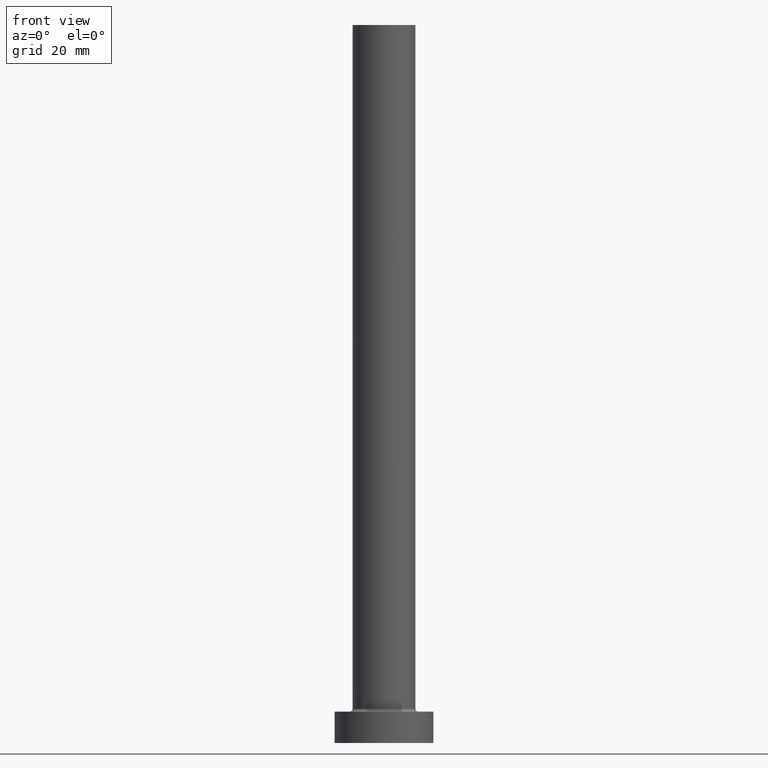
[diagram: clean part render]
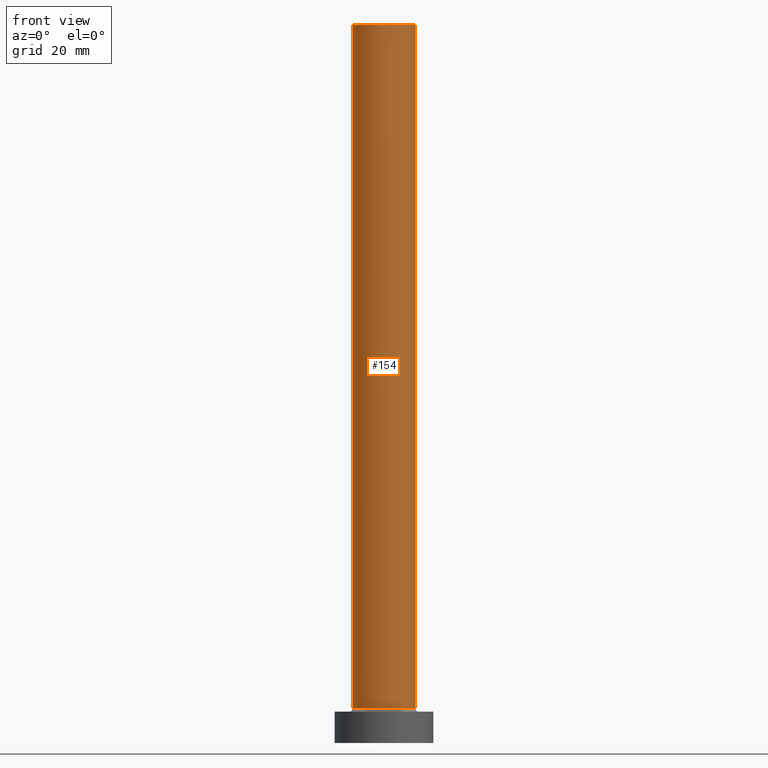
[diagram: same view with one face highlighted and labeled with its STEP entity id]
A machine part, front view. The second image highlights one B-rep face of the part: STEP entity #154.
In plain terms, the highlighted cylindrical surface (edge-blend (fillet) strip) has radius 7 mm, axis along (-0, -0, -1).
Its self-contained STEP definition (entity closure, byte-faithful):
#15 = VERTEX_POINT ( 'NONE', #131 ) ;
#35 = VERTEX_POINT ( 'NONE', #318 ) ;
#93 = FACE_OUTER_BOUND ( 'NONE', #261, .T. ) ;
#121 = CIRCLE ( 'NONE', #368, 7.000000000000000888 ) ;
#125 = LINE ( 'NONE', #276, #419 ) ;
#131 = CARTESIAN_POINT ( 'NONE',  ( -7.000000000000000888, 0.000000000000000000, 160.0000000000000000 ) ) ;
#135 = CARTESIAN_POINT ( 'NONE',  ( 7.000000000000000888, 8.572527594031474176E-16, 7.700000000000012612 ) ) ;
#139 = LINE ( 'NONE', #403, #333 ) ;
#154 = ADVANCED_FACE ( 'NONE', ( #93 ), #235, .T. ) ;
#159 = DIRECTION ( 'NONE',  ( 1.000000000000000000, 0.000000000000000000, 0.000000000000000000 ) ) ;
#160 = CARTESIAN_POINT ( 'NONE',  ( 0.000000000000000000, 0.000000000000000000, 160.0000000000000000 ) ) ;
#171 = AXIS2_PLACEMENT_3D ( 'NONE', #434, #188, #369 ) ;
#188 = DIRECTION ( 'NONE',  ( 0.000000000000000000, 0.000000000000000000, 1.000000000000000000 ) ) ;
#191 = DIRECTION ( 'NONE',  ( -1.000000000000000000, 0.000000000000000000, 0.000000000000000000 ) ) ;
#211 = VERTEX_POINT ( 'NONE', #135 ) ;
#212 = ORIENTED_EDGE ( 'NONE', *, *, #332, .T. ) ;
#218 = EDGE_CURVE ( 'NONE', #35, #211, #315, .T. ) ;
#230 = DIRECTION ( 'NONE',  ( -0.000000000000000000, -0.000000000000000000, -1.000000000000000000 ) ) ;
#235 = CYLINDRICAL_SURFACE ( 'NONE', #254, 7.000000000000000888 ) ;
#236 = DIRECTION ( 'NONE',  ( -0.000000000000000000, -0.000000000000000000, -1.000000000000000000 ) ) ;
#254 = AXIS2_PLACEMENT_3D ( 'NONE', #404, #230, #191 ) ;
#261 = EDGE_LOOP ( 'NONE', ( #433, #297, #212, #324 ) ) ;
#274 = DIRECTION ( 'NONE',  ( 0.000000000000000000, 0.000000000000000000, 1.000000000000000000 ) ) ;
#276 = CARTESIAN_POINT ( 'NONE',  ( -7.000000000000000888, 0.000000000000000000, 160.0000000000000000 ) ) ;
#297 = ORIENTED_EDGE ( 'NONE', *, *, #311, .F. ) ;
#311 = EDGE_CURVE ( 'NONE', #15, #431, #121, .T. ) ;
#315 = CIRCLE ( 'NONE', #171, 7.000000000000000888 ) ;
#318 = CARTESIAN_POINT ( 'NONE',  ( -7.000000000000000888, 0.000000000000000000, 7.700000000000012612 ) ) ;
#324 = ORIENTED_EDGE ( 'NONE', *, *, #218, .T. ) ;
#327 = CARTESIAN_POINT ( 'NONE',  ( 7.000000000000000888, 8.572527594031474176E-16, 160.0000000000000000 ) ) ;
#332 = EDGE_CURVE ( 'NONE', #15, #35, #125, .T. ) ;
#333 = VECTOR ( 'NONE', #236, 1000.000000000000000 ) ;
#368 = AXIS2_PLACEMENT_3D ( 'NONE', #160, #274, #159 ) ;
#369 = DIRECTION ( 'NONE',  ( 1.000000000000000000, 0.000000000000000000, 0.000000000000000000 ) ) ;
#373 = DIRECTION ( 'NONE',  ( -0.000000000000000000, -0.000000000000000000, -1.000000000000000000 ) ) ;
#403 = CARTESIAN_POINT ( 'NONE',  ( 7.000000000000000888, 8.572527594031474176E-16, 160.0000000000000000 ) ) ;
#404 = CARTESIAN_POINT ( 'NONE',  ( 0.000000000000000000, 0.000000000000000000, 160.0000000000000000 ) ) ;
#419 = VECTOR ( 'NONE', #373, 1000.000000000000000 ) ;
#431 = VERTEX_POINT ( 'NONE', #327 ) ;
#433 = ORIENTED_EDGE ( 'NONE', *, *, #456, .F. ) ;
#434 = CARTESIAN_POINT ( 'NONE',  ( 0.000000000000000000, 0.000000000000000000, 7.700000000000012612 ) ) ;
#456 = EDGE_CURVE ( 'NONE', #431, #211, #139, .T. ) ;